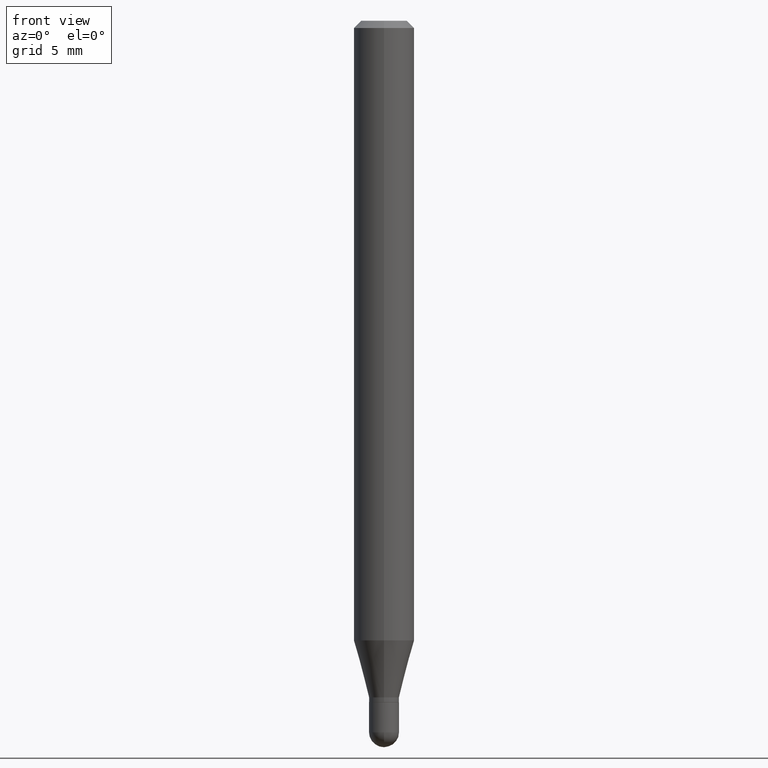
[diagram: clean part render]
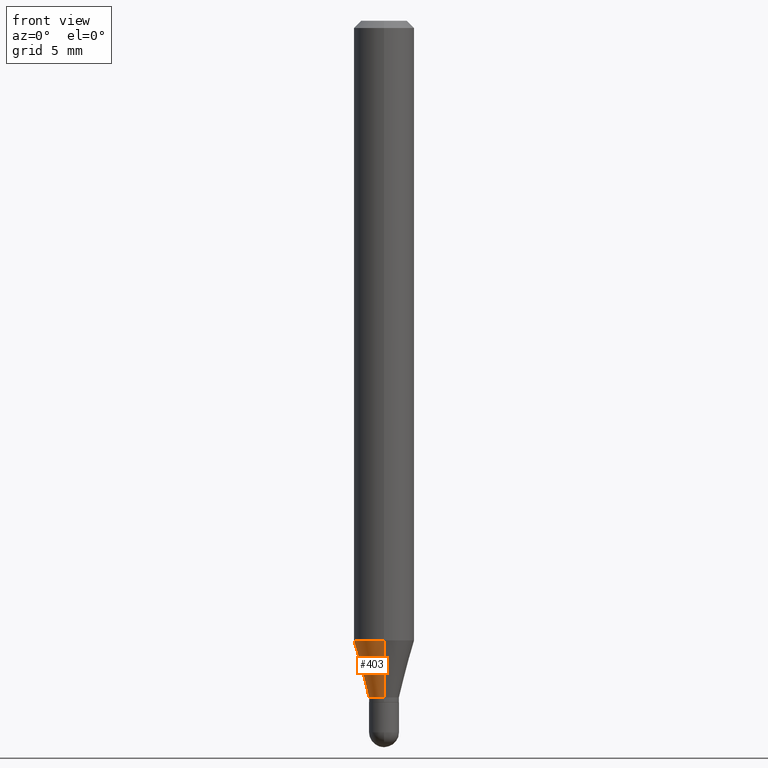
[diagram: same view with one face highlighted and labeled with its STEP entity id]
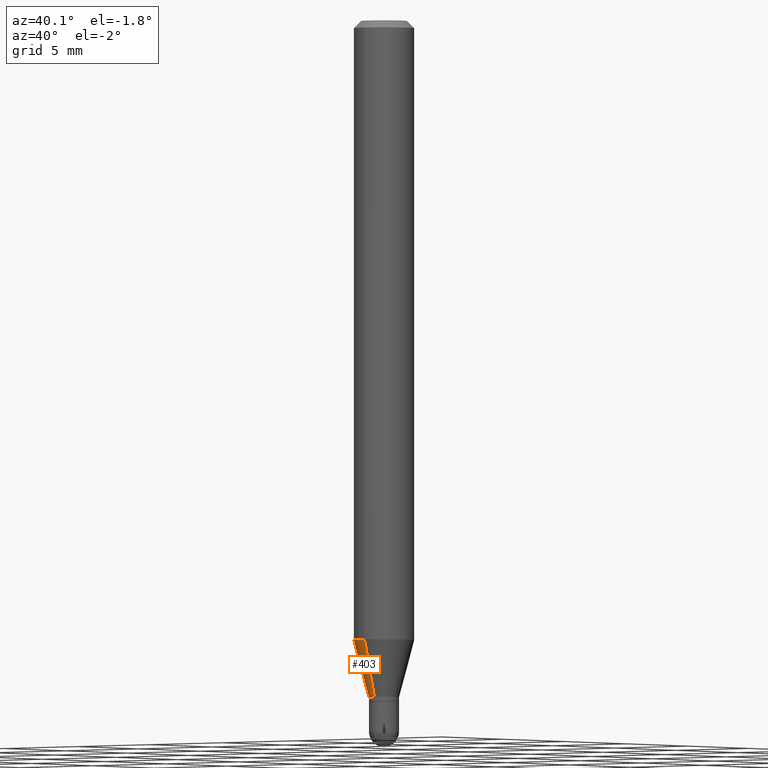
[diagram: same view with one face highlighted and labeled with its STEP entity id]
A machine part, front view. The second image highlights one B-rep face of the part: STEP entity #403.
A second angle (auxiliary view) of the same face is appended — the face is thin or edge-on in the first view.
In plain terms, the highlighted conical surface has half-angle 15 deg.
Its self-contained STEP definition (entity closure, byte-faithful):
#13 = CARTESIAN_POINT ( 'NONE',  ( -4.364351673553605094E-16, -0.06250000000000448253, -1.279440399561580399 ) ) ;
#19 = EDGE_CURVE ( 'NONE', #32, #107, #314, .T. ) ;
#21 = ORIENTED_EDGE ( 'NONE', *, *, #290, .T. ) ;
#32 = VERTEX_POINT ( 'NONE', #267 ) ;
#36 = EDGE_CURVE ( 'NONE', #382, #107, #152, .T. ) ;
#51 = CARTESIAN_POINT ( 'NONE',  ( 3.416357971113700377E-29, -4.877544942212040003E-15, -1.397000000000000242 ) ) ;
#58 = ORIENTED_EDGE ( 'NONE', *, *, #19, .F. ) ;
#68 = DIRECTION ( 'NONE',  ( -1.807323732225332900E-15, -0.2588190451025185190, 0.9659258262890689783 ) ) ;
#98 = AXIS2_PLACEMENT_3D ( 'NONE', #430, #346, #422 ) ;
#105 = CARTESIAN_POINT ( 'NONE',  ( 3.321787289678792287E-16, 0.03099999999999503500, -1.397000000000000242 ) ) ;
#107 = VERTEX_POINT ( 'NONE', #13 ) ;
#112 = CIRCLE ( 'NONE', #487, 0.03099999999999991651 ) ;
#113 = ORIENTED_EDGE ( 'NONE', *, *, #293, .F. ) ;
#128 = DIRECTION ( 'NONE',  ( 1.839019923739602682E-15, 0.2588190451025252914, 0.9659258262890670910 ) ) ;
#137 = DIRECTION ( 'NONE',  ( -6.982962677686266711E-15, -1.000000000000000000, 0.000000000000000000 ) ) ;
#147 = CARTESIAN_POINT ( 'NONE',  ( -2.164718430082395226E-16, -0.03100000000000479802, -1.397000000000000242 ) ) ;
#152 = LINE ( 'NONE', #157, #466 ) ;
#157 = CARTESIAN_POINT ( 'NONE',  ( -2.164718430082395226E-16, -0.03100000000000479802, -1.397000000000000242 ) ) ;
#181 = CARTESIAN_POINT ( 'NONE',  ( 3.416357971113700377E-29, -4.877544942212040003E-15, -1.397000000000000242 ) ) ;
#205 = EDGE_LOOP ( 'NONE', ( #113, #21, #493, #58 ) ) ;
#222 = DIRECTION ( 'NONE',  ( -2.445496042314745397E-29, 3.491442335155361584E-15, 1.000000000000000000 ) ) ;
#267 = CARTESIAN_POINT ( 'NONE',  ( 4.440892098500935790E-16, 0.06249999999999551054, -1.279440399561581065 ) ) ;
#290 = EDGE_CURVE ( 'NONE', #390, #382, #112, .T. ) ;
#293 = EDGE_CURVE ( 'NONE', #390, #32, #330, .T. ) ;
#314 = CIRCLE ( 'NONE', #98, 0.06250000000000000000 ) ;
#322 = VECTOR ( 'NONE', #128, 39.37007874015748143 ) ;
#330 = LINE ( 'NONE', #484, #322 ) ;
#346 = DIRECTION ( 'NONE',  ( -2.445496042314745397E-29, 3.491442335155361584E-15, 1.000000000000000000 ) ) ;
#368 = DIRECTION ( 'NONE',  ( -6.982962677686266711E-15, -1.000000000000000000, 0.000000000000000000 ) ) ;
#373 = FACE_OUTER_BOUND ( 'NONE', #205, .T. ) ;
#374 = AXIS2_PLACEMENT_3D ( 'NONE', #181, #377, #137 ) ;
#377 = DIRECTION ( 'NONE',  ( -2.445496042314745397E-29, 3.491442335155361584E-15, 1.000000000000000000 ) ) ;
#382 = VERTEX_POINT ( 'NONE', #147 ) ;
#390 = VERTEX_POINT ( 'NONE', #105 ) ;
#403 = ADVANCED_FACE ( 'NONE', ( #373 ), #467, .T. ) ;
#422 = DIRECTION ( 'NONE',  ( -6.982962677686265922E-15, -1.000000000000000000, 4.370956789862821150E-15 ) ) ;
#430 = CARTESIAN_POINT ( 'NONE',  ( 3.128866433505442183E-29, -4.467092376337393901E-15, -1.279440399561580843 ) ) ;
#466 = VECTOR ( 'NONE', #68, 39.37007874015748854 ) ;
#467 = CONICAL_SURFACE ( 'NONE', #374, 0.03099999999999991651, 0.2617993877991506291 ) ;
#484 = CARTESIAN_POINT ( 'NONE',  ( 2.202682480856645826E-16, 0.03099999999999503847, -1.397000000000000242 ) ) ;
#487 = AXIS2_PLACEMENT_3D ( 'NONE', #51, #222, #368 ) ;
#493 = ORIENTED_EDGE ( 'NONE', *, *, #36, .T. ) ;